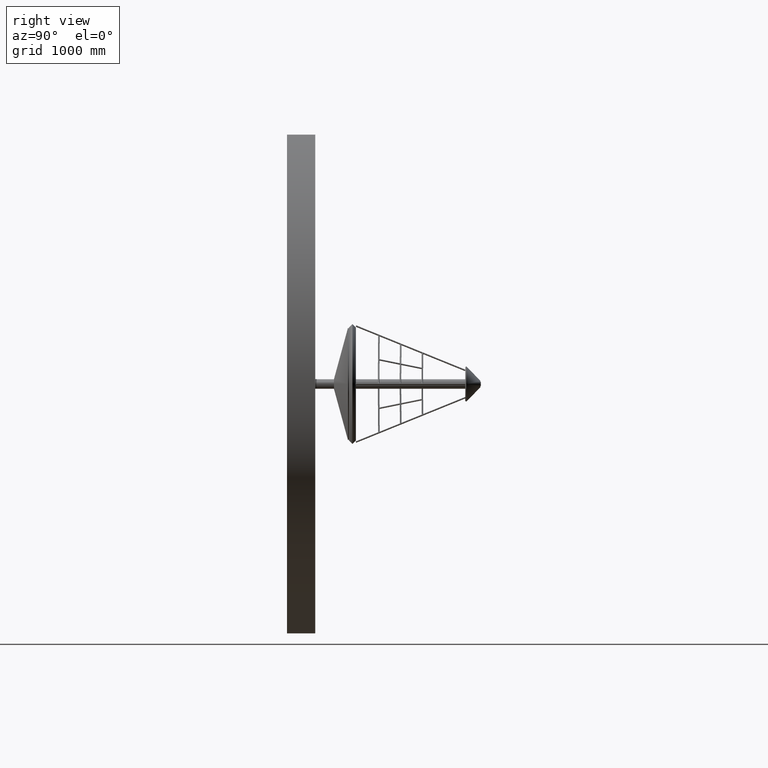
[diagram: clean part render]
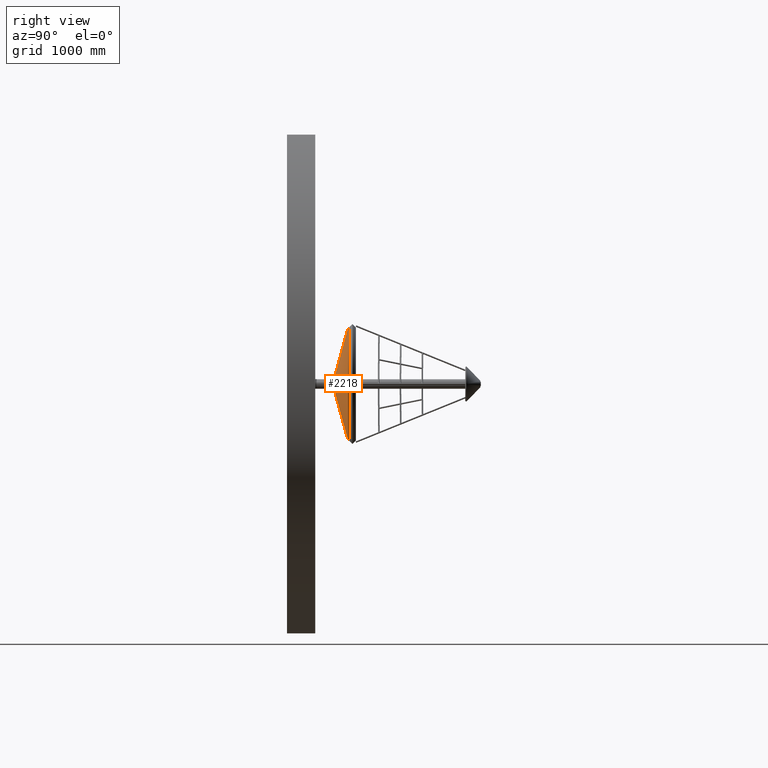
[diagram: same view with one face highlighted and labeled with its STEP entity id]
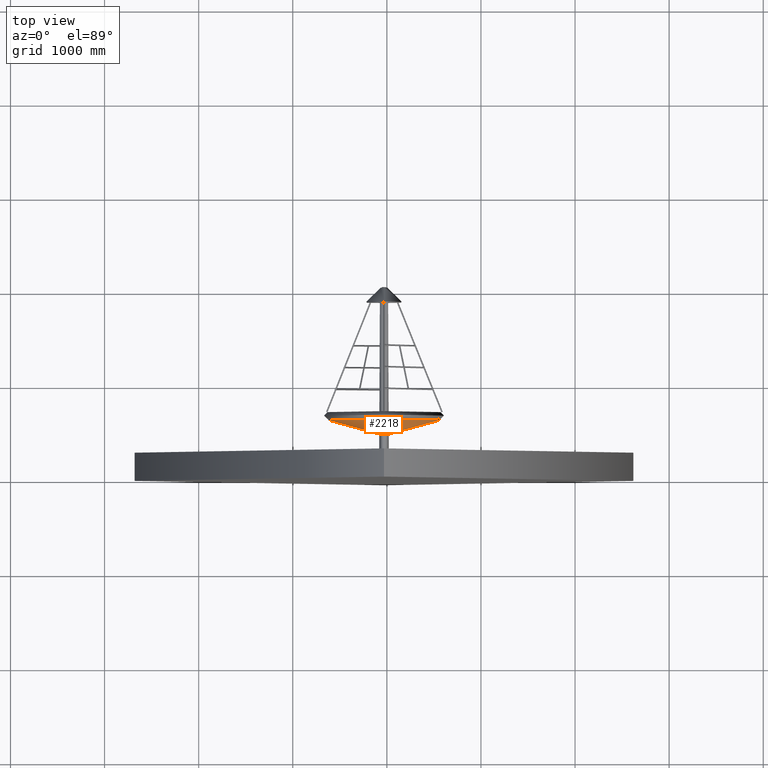
[diagram: same view with one face highlighted and labeled with its STEP entity id]
A machine part, right view. The second image highlights one B-rep face of the part: STEP entity #2218.
A second angle (top view) of the same face is appended — the face is thin or edge-on in the first view.
In plain terms, the highlighted toroidal blend (fillet) surface has major radius 50.916 mm and minor (blend) radius 1074.02 mm.
Its self-contained STEP definition (entity closure, byte-faithful):
#371 = VERTEX_POINT ( 'NONE', #4145 ) ;
#399 = ORIENTED_EDGE ( 'NONE', *, *, #1024, .T. ) ;
#606 = EDGE_LOOP ( 'NONE', ( #399 ) ) ;
#867 = VERTEX_POINT ( 'NONE', #4552 ) ;
#1024 = EDGE_CURVE ( 'NONE', #867, #867, #2078, .T. ) ;
#1265 = EDGE_LOOP ( 'NONE', ( #3717 ) ) ;
#1377 = DIRECTION ( 'NONE',  ( 0.0000000000000000000, 0.0000000000000000000, -1.000000000000000000 ) ) ;
#1873 = CARTESIAN_POINT ( 'NONE',  ( 0.0000000000000000000, 353.0159397757140000, 0.0000000000000000000 ) ) ;
#2076 = CARTESIAN_POINT ( 'NONE',  ( 0.0000000000000000000, 204.5451662290433900, 0.0000000000000000000 ) ) ;
#2078 = CIRCLE ( 'NONE', #4085, 595.7825471748033100 ) ;
#2218 = ADVANCED_FACE ( 'NONE', ( #2498, #2681 ), #5220, .T. ) ;
#2498 = FACE_OUTER_BOUND ( 'NONE', #606, .T. ) ;
#2558 = DIRECTION ( 'NONE',  ( -0.0000000000000000000, -1.000000000000000000, -0.0000000000000000000 ) ) ;
#2681 = FACE_OUTER_BOUND ( 'NONE', #1265, .T. ) ;
#3106 = DIRECTION ( 'NONE',  ( 0.0000000000000000000, 0.0000000000000000000, -1.000000000000000000 ) ) ;
#3246 = CIRCLE ( 'NONE', #5911, 52.79934850460892900 ) ;
#3649 = DIRECTION ( 'NONE',  ( -0.0000000000000000000, -1.000000000000000000, -0.0000000000000000000 ) ) ;
#3717 = ORIENTED_EDGE ( 'NONE', *, *, #5631, .F. ) ;
#4085 = AXIS2_PLACEMENT_3D ( 'NONE', #1873, #5439, #1377 ) ;
#4143 = CARTESIAN_POINT ( 'NONE',  ( 0.0000000000000000000, 1278.559829838407700, 0.0000000000000000000 ) ) ;
#4145 = CARTESIAN_POINT ( 'NONE',  ( 0.0000000000000000000, 204.5451662290433900, -52.79934850460892900 ) ) ;
#4552 = CARTESIAN_POINT ( 'NONE',  ( 0.0000000000000000000, 353.0159397757140000, -595.7825471748033100 ) ) ;
#5220 = TOROIDAL_SURFACE ( 'NONE', #6262, 50.91600185369438200, 1074.016314886577400 ) ;
#5439 = DIRECTION ( 'NONE',  ( -0.0000000000000000000, -1.000000000000000000, -0.0000000000000000000 ) ) ;
#5631 = EDGE_CURVE ( 'NONE', #371, #371, #3246, .T. ) ;
#5685 = DIRECTION ( 'NONE',  ( 0.0000000000000000000, 0.0000000000000000000, -1.000000000000000000 ) ) ;
#5911 = AXIS2_PLACEMENT_3D ( 'NONE', #2076, #2558, #3106 ) ;
#6262 = AXIS2_PLACEMENT_3D ( 'NONE', #4143, #3649, #5685 ) ;